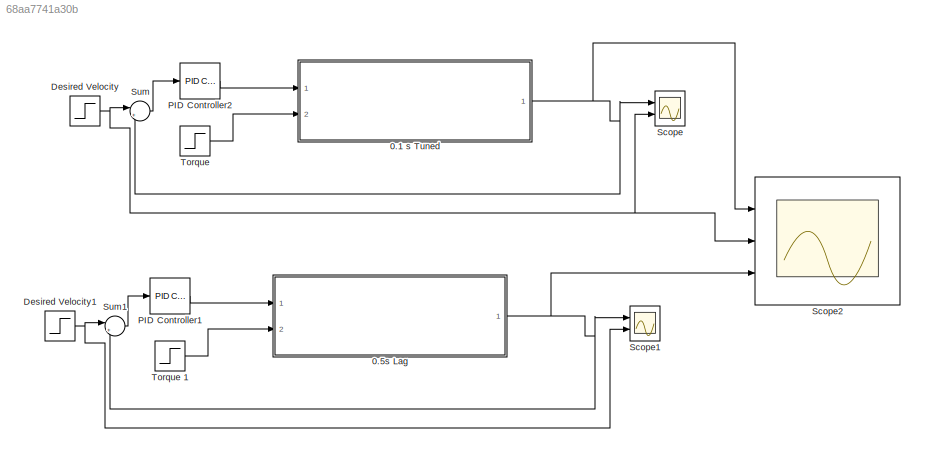
MODEL slx_68aa7741a30b
KIND model
CONFIG AbsTol = auto
CONFIG EnableMultiTasking = off
CONFIG FixedStep = auto
CONFIG MaxStep = auto
CONFIG MinStep = auto
CONFIG RelTol = 1e-3
CONFIG SampleTimeConstraint = Unconstrained
CONFIG SolverName = VariableStepAuto
CONFIG StartTime = 0.0
CONFIG StopTime = 10
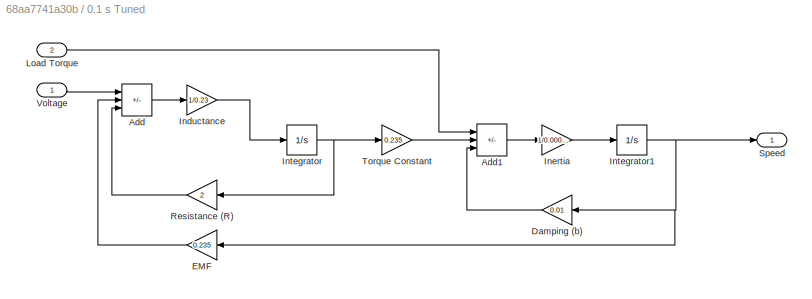
BLOCK [SubSystem] 0.1 s Tuned
  Ports = [2, 1]
  RequestExecContextInheritance = off
BLOCK [Sum] 0.1 s Tuned/Add
  IconShape = rectangular
  Inputs = +--
  Ports = [3, 1]
BLOCK [Sum] 0.1 s Tuned/Add1
  IconShape = rectangular
  Inputs = -+-
  Ports = [3, 1]
BLOCK [Gain] 0.1 s Tuned/Damping (b)
  Gain = 0.01
  NameLocation = top
BLOCK [Gain] 0.1 s Tuned/EMF
  Gain = 0.235
  NameLocation = top
BLOCK [Gain] 0.1 s Tuned/Inductance
  Gain = 1/0.23
BLOCK [Gain] 0.1 s Tuned/Inertia 
  Gain = 1/0.000052
BLOCK [Integrator] 0.1 s Tuned/Integrator
  Ports = [1, 1]
BLOCK [Integrator] 0.1 s Tuned/Integrator1
  Ports = [1, 1]
BLOCK [Inport] 0.1 s Tuned/Load Torque 
  Port = 2
BLOCK [Gain] 0.1 s Tuned/Resistance (R)
  Gain = 2
  NameLocation = top
BLOCK [Outport] 0.1 s Tuned/Speed 
  VectorParamsAs1DForOutWhenUnconnected = off
BLOCK [Gain] 0.1 s Tuned/Torque Constant
  Gain = 0.235
BLOCK [Inport] 0.1 s Tuned/Voltage
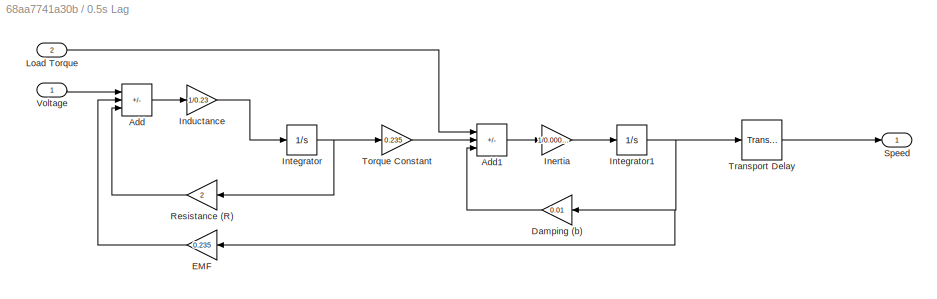
BLOCK [SubSystem] 0.5s  Lag
  Ports = [2, 1]
  RequestExecContextInheritance = off
BLOCK [Sum] 0.5s  Lag/Add
  IconShape = rectangular
  Inputs = +--
  Ports = [3, 1]
BLOCK [Sum] 0.5s  Lag/Add1
  IconShape = rectangular
  Inputs = -+-
  Ports = [3, 1]
BLOCK [Gain] 0.5s  Lag/Damping (b)
  Gain = 0.01
  NameLocation = top
BLOCK [Gain] 0.5s  Lag/EMF
  Gain = 0.235
  NameLocation = top
BLOCK [Gain] 0.5s  Lag/Inductance
  Gain = 1/0.23
BLOCK [Gain] 0.5s  Lag/Inertia 
  Gain = 1/0.000052
BLOCK [Integrator] 0.5s  Lag/Integrator
  Ports = [1, 1]
BLOCK [Integrator] 0.5s  Lag/Integrator1
  Ports = [1, 1]
BLOCK [Inport] 0.5s  Lag/Load Torque 
  Port = 2
BLOCK [Gain] 0.5s  Lag/Resistance (R)
  Gain = 2
  NameLocation = top
BLOCK [Outport] 0.5s  Lag/Speed 
  VectorParamsAs1DForOutWhenUnconnected = off
BLOCK [Gain] 0.5s  Lag/Torque Constant
  Gain = 0.235
BLOCK [TransportDelay] 0.5s  Lag/Transport Delay
  DelayTime = 0.5
  Ports = [1, 1]
BLOCK [Inport] 0.5s  Lag/Voltage
BLOCK [Step] Desired Velocity
  After = 10
  NameLocation = top
  SampleTime = 0
BLOCK [Step] Desired Velocity1
  After = 10
  NameLocation = top
  SampleTime = 0
BLOCK [Reference] PID Controller1  REF=pid_lib/PID Controller
  Ports = [1, 1]
  SourceBlock = pid_lib/PID Controller
  SourceProductBaseCode = SL
  SourceType = PID 1dof
BLOCK [Reference] PID Controller2  REF=pid_lib/PID Controller
  Ports = [1, 1]
  SourceBlock = pid_lib/PID Controller
  SourceProductBaseCode = SL
  SourceType = PID 1dof
BLOCK [Scope] Scope
  Floating = off
  NumInputPorts = 2
  Ports = [2]
  ScopeSpecificationString = Simulink.scopes.TimeScopeBlockCfg('CurrentConfiguration', extmgr.ConfigurationSet(extmgr.Configuration('Core','General UI',true),extmgr.Configuration('Core','Source UI',true),extmgr.Configuration('Sources','WiredSimulink',true),extmgr.Configuration('Visuals','Time Domain',true,'SerializedDisplays',{struct('MinYLimReal','-2.16749','MaxYLimReal','19.50737','YLabelReal','','MinYLimMag','0.00000','Max...<+1425ch>
BLOCK [Scope] Scope1
  Floating = off
  NumInputPorts = 2
  Ports = [2]
  ScopeSpecificationString = Simulink.scopes.TimeScopeBlockCfg('CurrentConfiguration', extmgr.ConfigurationSet(extmgr.Configuration('Core','General UI',true),extmgr.Configuration('Core','Source UI',true),extmgr.Configuration('Sources','WiredSimulink',true,'DataLoggingVariableName','ScopeData1'),extmgr.Configuration('Visuals','Time Domain',true,'SerializedDisplays',{struct('MinYLimReal','-2.16749','MaxYLimReal','19.50737','YLa...<+1463ch>
BLOCK [Scope] Scope2
  Floating = off
  NumInputPorts = 3
  Ports = [3]
  ScopeSpecificationString = Simulink.scopes.TimeScopeBlockCfg('CurrentConfiguration', extmgr.ConfigurationSet(extmgr.Configuration('Core','General UI',true),extmgr.Configuration('Core','Source UI',true),extmgr.Configuration('Sources','WiredSimulink',true,'DataLoggingVariableName','ScopeData2'),extmgr.Configuration('Visuals','Time Domain',true,'SerializedDisplays',{struct('MinYLimReal','-15.18761','MaxYLimReal','15.08754','YL...<+1864ch>
BLOCK [Sum] Sum
  Inputs = |+-
  Ports = [2, 1]
BLOCK [Sum] Sum1
  Inputs = |+-
  Ports = [2, 1]
BLOCK [Step] Torque 
  After = 0
  SampleTime = 0
  Time = 20
BLOCK [Step] Torque 1
  After = 0
  SampleTime = 0
  Time = 20
LINE 0.1 s Tuned/Add1:1 -> 0.1 s Tuned/Inertia :1
LINE 0.1 s Tuned/Add:1 -> 0.1 s Tuned/Inductance:1
LINE 0.1 s Tuned/Damping (b):1 -> 0.1 s Tuned/Add1:3
LINE 0.1 s Tuned/EMF:1 -> 0.1 s Tuned/Add:2
LINE 0.1 s Tuned/Inductance:1 -> 0.1 s Tuned/Integrator:1
LINE 0.1 s Tuned/Inertia :1 -> 0.1 s Tuned/Integrator1:1
NET 0.1 s Tuned/Integrator1:1 -> 0.1 s Tuned/Damping (b):1, 0.1 s Tuned/EMF:1, 0.1 s Tuned/Speed :1
NET 0.1 s Tuned/Integrator:1 -> 0.1 s Tuned/Resistance (R):1, 0.1 s Tuned/Torque Constant:1
LINE 0.1 s Tuned/Load Torque :1 -> 0.1 s Tuned/Add1:1
LINE 0.1 s Tuned/Resistance (R):1 -> 0.1 s Tuned/Add:3
LINE 0.1 s Tuned/Torque Constant:1 -> 0.1 s Tuned/Add1:2
LINE 0.1 s Tuned/Voltage:1 -> 0.1 s Tuned/Add:1
NET 0.1 s Tuned:1 -> Scope2:1, Scope:1, Sum:2
LINE 0.5s  Lag/Add1:1 -> 0.5s  Lag/Inertia :1
LINE 0.5s  Lag/Add:1 -> 0.5s  Lag/Inductance:1
LINE 0.5s  Lag/Damping (b):1 -> 0.5s  Lag/Add1:3
LINE 0.5s  Lag/EMF:1 -> 0.5s  Lag/Add:2
LINE 0.5s  Lag/Inductance:1 -> 0.5s  Lag/Integrator:1
LINE 0.5s  Lag/Inertia :1 -> 0.5s  Lag/Integrator1:1
NET 0.5s  Lag/Integrator1:1 -> 0.5s  Lag/Damping (b):1, 0.5s  Lag/EMF:1, 0.5s  Lag/Transport Delay:1
NET 0.5s  Lag/Integrator:1 -> 0.5s  Lag/Resistance (R):1, 0.5s  Lag/Torque Constant:1
LINE 0.5s  Lag/Load Torque :1 -> 0.5s  Lag/Add1:1
LINE 0.5s  Lag/Resistance (R):1 -> 0.5s  Lag/Add:3
LINE 0.5s  Lag/Torque Constant:1 -> 0.5s  Lag/Add1:2
LINE 0.5s  Lag/Transport Delay:1 -> 0.5s  Lag/Speed :1
LINE 0.5s  Lag/Voltage:1 -> 0.5s  Lag/Add:1
NET 0.5s  Lag:1 -> Scope1:1, Scope2:3, Sum1:2
NET Desired Velocity1:1 -> Scope1:2, Sum1:1
NET Desired Velocity:1 -> Scope2:2, Scope:2, Sum:1
LINE PID Controller1:1 -> 0.5s  Lag:1
LINE PID Controller2:1 -> 0.1 s Tuned:1
LINE Sum1:1 -> PID Controller1:1
LINE Sum:1 -> PID Controller2:1
LINE Torque 1:1 -> 0.5s  Lag:2
LINE Torque :1 -> 0.1 s Tuned:2
note: NET lines group one-source signal fan-out (src -> all destinations, sorted); 1:1 wires keep LINE
